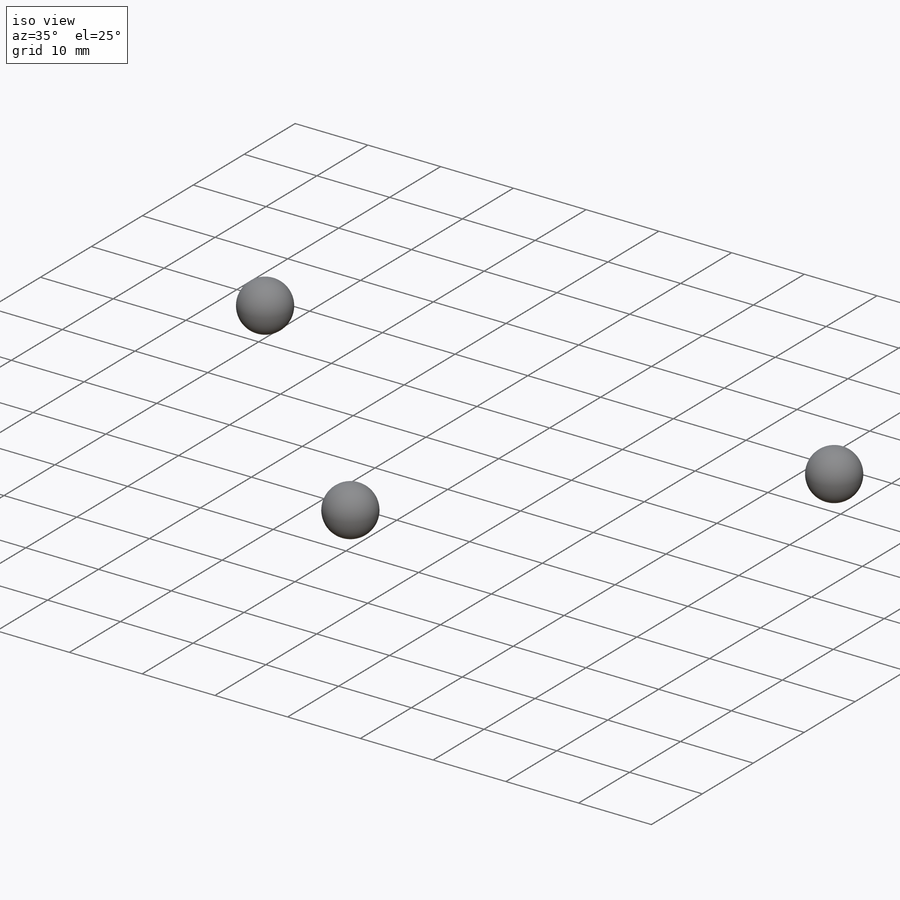
[diagram: iso view]
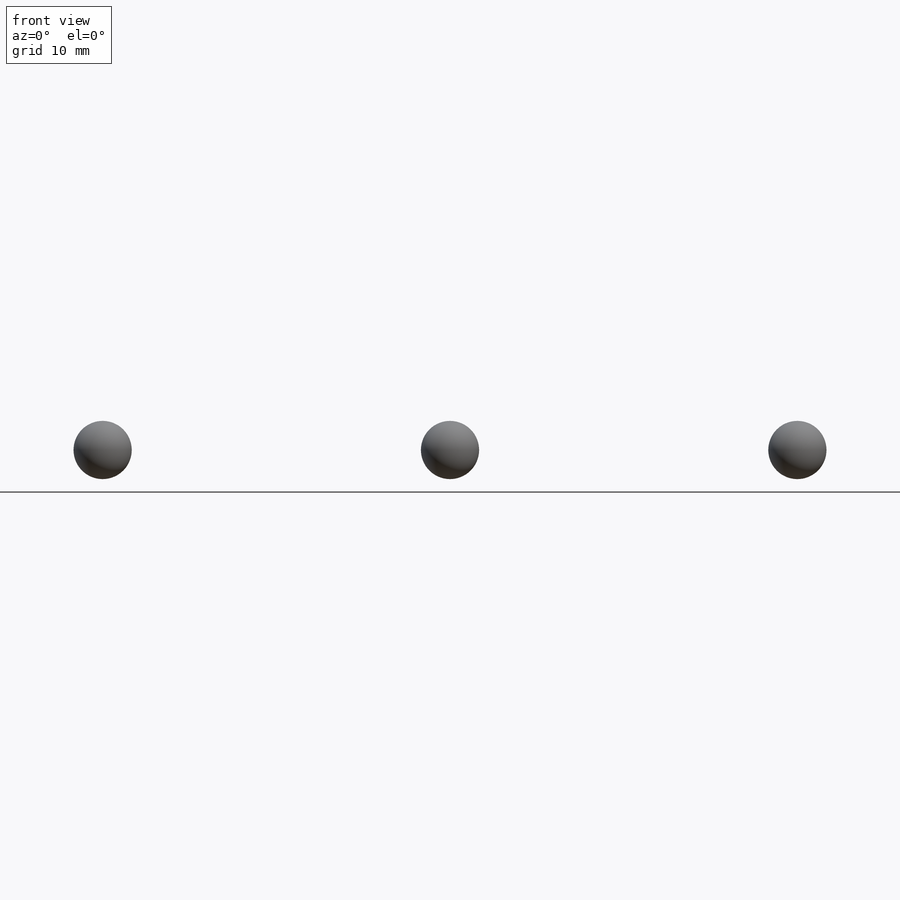
[diagram: front view]
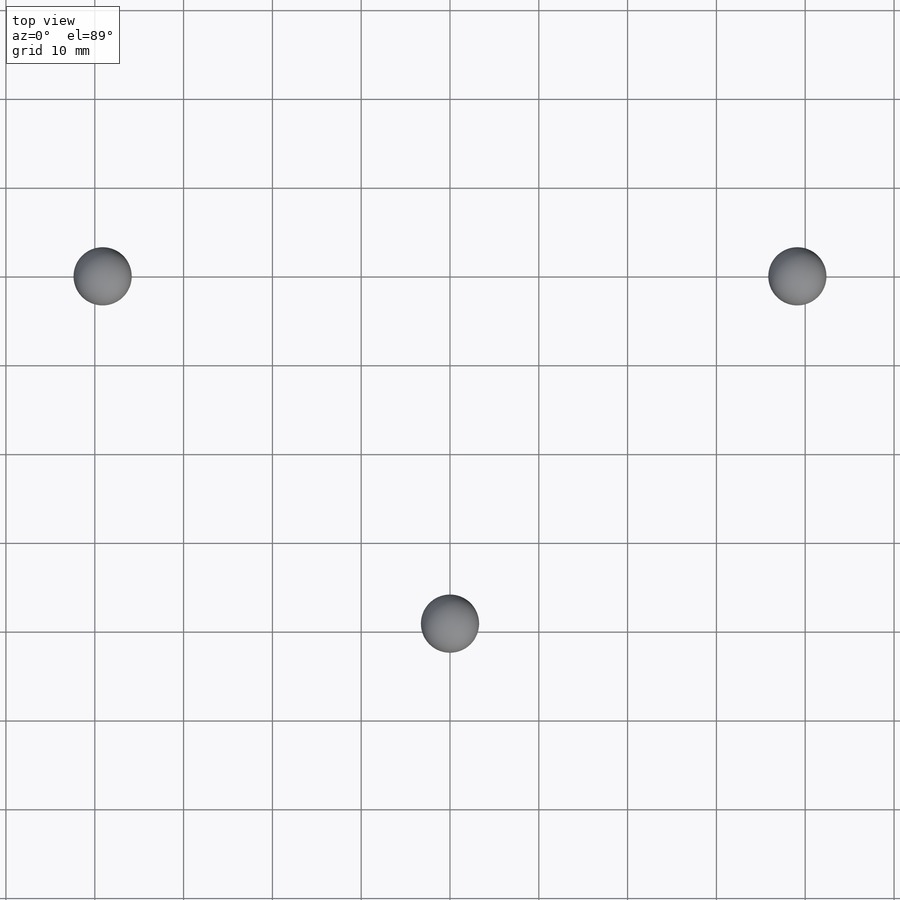
[diagram: top view]
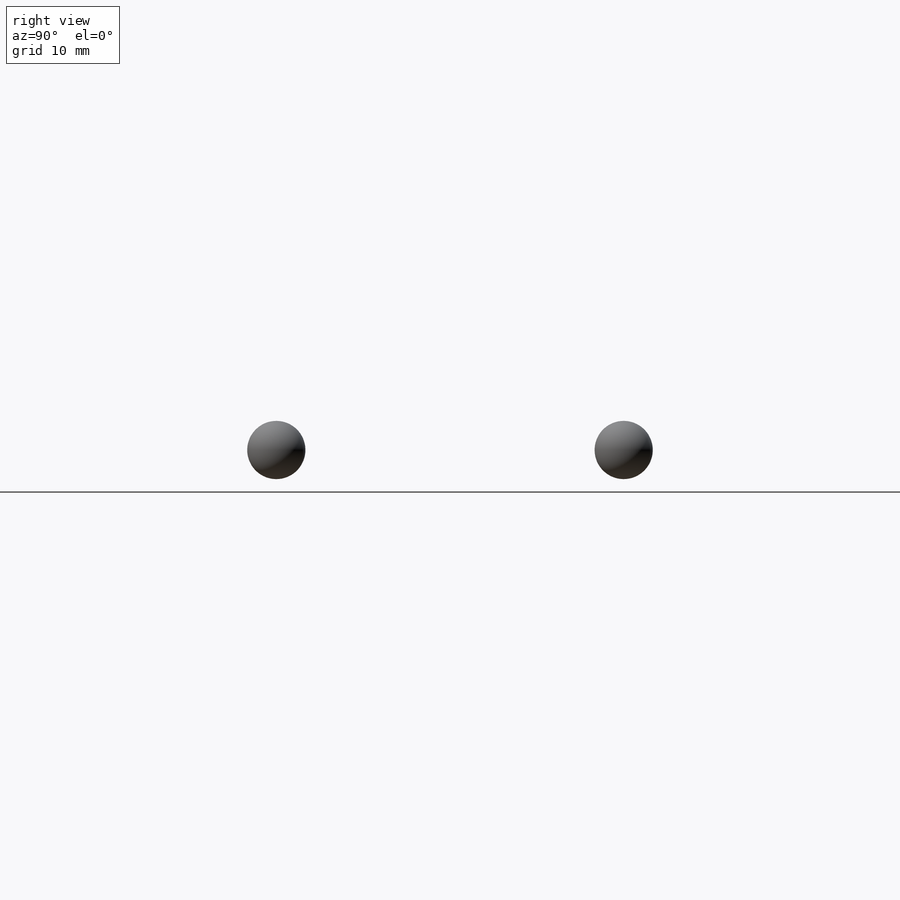
[diagram: right view]
SOLIDWORKS PART (.sldprt)
format: sldprt  version: not decoded by parser v0  size: 1,104,896 bytes
history: native  units: mm
features: sketch x13, hole x4, extrude x2, material x1, revolve x1, pattern_circular x1 (+11 scaffold rows collapsed)
feature tree (33):
  scaffold x11  (default folders/planes/origin — collapsed)
  material  "Plain Carbon Steel"
  sketch  "Sketch1"  dims[c1.D1=~6.174642mm c1.D5=8.128mm c1.D7=4.064mm c1.D6=3.9751mm c2.D1=~53.784381mm c2.D2=~53.784381mm c3.D1=54.864mm c3.D2=3.556mm c3.D3=101.6mm c3.D4=6.604mm c3.D5=9.525mm c3.D6=9.525mm c3.D8=0.7366mm c3.D9=~2.829762mm c4.D9=45.0deg c4.D10=0.7366mm c5.D9=8.128mm c5.D10=~47.447248mm c5.D6=78.232mm c5.D1=360.0deg c5.D3=0.7366mm c5.D4=1.0mm c5.D7=0.0mm]
  sketch  "Sketch1<5>"  dims[D1=360.0deg D3=0.7366mm D4=1.0mm D7=0.0mm]
  sketch  "Sketch2"  dims[D1=76.2mm]
  extrude  "Extrude1"  [1 undecoded]
  sketch  "Sketch3"
  extrude  "Extrude2"  [1 undecoded]
  sketch  "Sketch4"  dims[D1=0.0508mm D2=~1.463381mm]
  revolve  "Revolve1"  Angle=360deg
  pattern_circular  "CirPattern1"  Count=4 Angle=360deg
  hole  "5/32 (0.156250) Diameter Hole1"  Diameter=3.96875mm Depth=0.7366mm
  sketch  "Sketch6"  dims[D1=89.6874mm D2=89.6874mm]
  sketch  "Sketch5"  dims[hole-wizard template sketch: 61 standard entries collapsed; hole parameters above]
  hole  "5/32 (0.156250) Diameter Hole2"  Diameter=3.96875mm Depth=8.128mm
  sketch  "Sketch8"  dims[D1=80.9752mm D2=80.9752mm]
  sketch  "Sketch7"  dims[hole-wizard template sketch: 60 standard entries collapsed; hole parameters kept: c18.Thru Hole Depth=8.128mm]
  hole  "3/32 (0.093750) Diameter Hole1"  Diameter=2.38125mm Depth=0.7366mm
  sketch  "Sketch10"  dims[D1=69.85mm D2=69.85mm]
  sketch  "Sketch9"  dims[hole-wizard template sketch: 60 standard entries collapsed; hole parameters kept: c18.Thru Hole Depth=0.7366mm]
  hole  "3/32 (0.093750) Diameter Hole2"  Diameter=2.38125mm Depth=25.4mm
  sketch  "Sketch12"  dims[D1=74.422mm D2=74.422mm]
  sketch  "Sketch11"  dims[hole-wizard template sketch: 47 standard entries collapsed; hole parameters kept: c15.Hole Depth=25.4mm c15.D3=~14.816244mm c15.Drill Angle=118.0deg]
decode coverage: 18 of 21 modeling features carry decoded parameters
note: ~ marks probable driven/reference dimensions
note: 2 parameter values undecoded
summary: Diameter pulled from absorbed wizard sketch
note: suppression state not decoded; provenance and decode notes live in map.json
